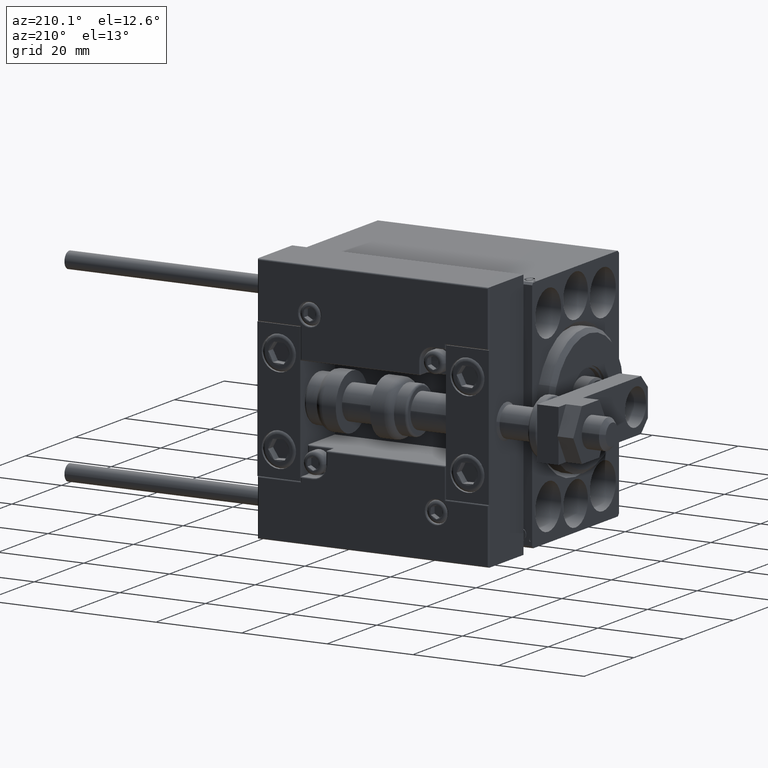
[diagram: clean part render]
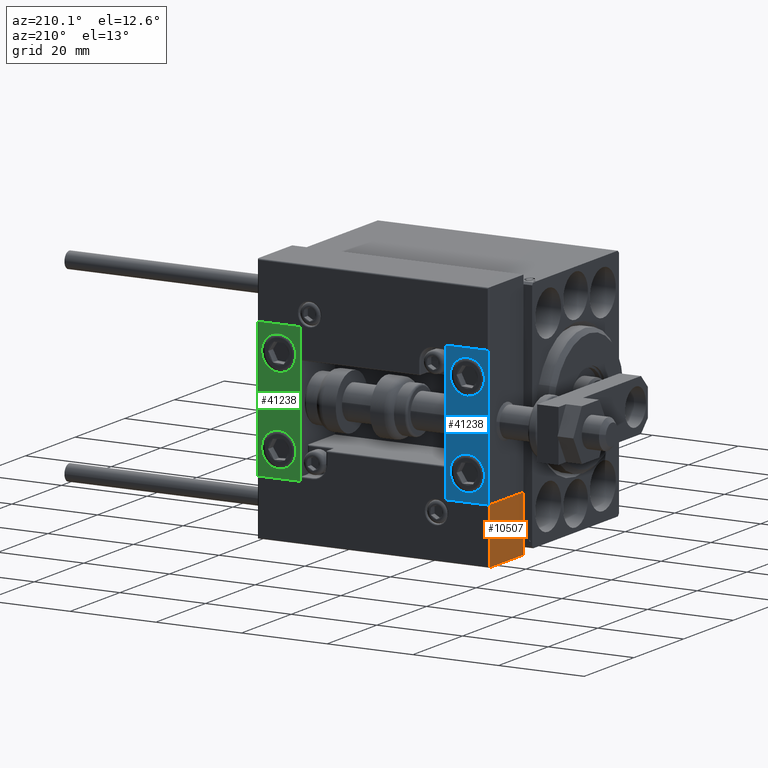
[diagram: same view with three faces highlighted in distinct colors, each labeled with its STEP entity id]
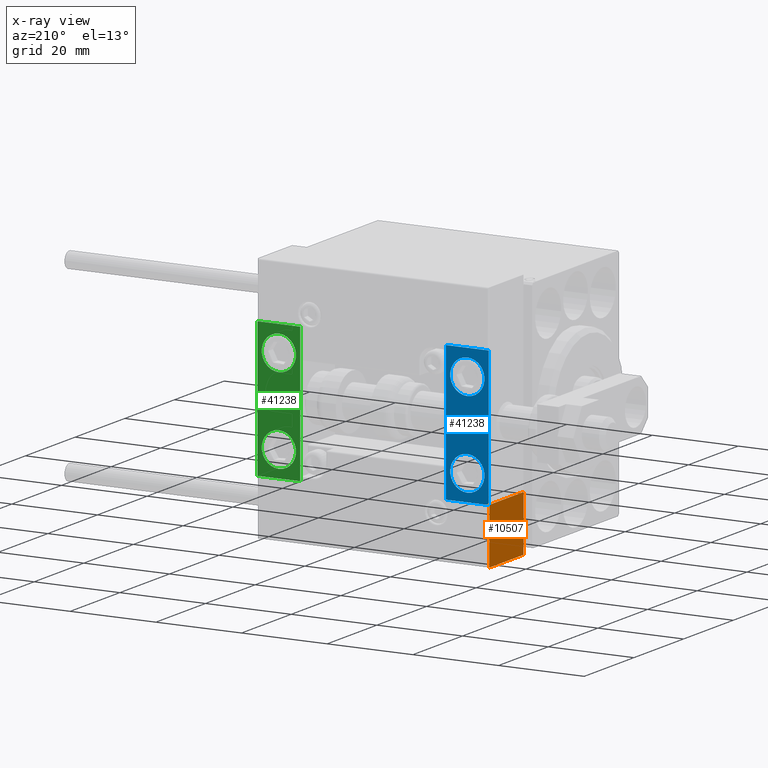
[diagram: x-ray of the same camera — body ghosted, the three highlighted faces saturated]
A machine part, auxiliary view with three faces highlighted in distinct colors.
The next image is the same camera in x-ray (body ghosted, the three faces saturated) — at least one of them is partly hidden behind the body in this view.
Their STEP definitions:

[orange] entity #10507 — the highlighted planar face has unit normal (1, 0, -0).
#366 = VERTEX_POINT ( 'NONE', #42802 ) ;
#934 = DIRECTION ( 'NONE',  ( -0.000000000000000000, -0.000000000000000000, -1.000000000000000000 ) ) ;
#2728 = CARTESIAN_POINT ( 'NONE',  ( -26.99999999999994671, 7.000000000000005329, 13.70000000000000107 ) ) ;
#5105 = EDGE_CURVE ( 'NONE', #27529, #40613, #48378, .T. ) ;
#5460 = CARTESIAN_POINT ( 'NONE',  ( -26.99999999999993605, 20.00000000000002132, 13.70000000000000107 ) ) ;
#10288 = LINE ( 'NONE', #49556, #30605 ) ;
#10507 = ADVANCED_FACE ( 'NONE', ( #18306 ), #41386, .F. ) ;
#11102 = VECTOR ( 'NONE', #934, 1000.000000000000000 ) ;
#11470 = DIRECTION ( 'NONE',  ( 1.000000000000000000, -8.006416042969869188E-16, 0.000000000000000000 ) ) ;
#13122 = LINE ( 'NONE', #36442, #11102 ) ;
#13878 = AXIS2_PLACEMENT_3D ( 'NONE', #45436, #11470, #41867 ) ;
#15102 = ORIENTED_EDGE ( 'NONE', *, *, #33647, .T. ) ;
#15648 = DIRECTION ( 'NONE',  ( -0.000000000000000000, -0.000000000000000000, -1.000000000000000000 ) ) ;
#16916 = VECTOR ( 'NONE', #15648, 1000.000000000000000 ) ;
#18306 = FACE_OUTER_BOUND ( 'NONE', #45533, .T. ) ;
#19131 = VECTOR ( 'NONE', #36410, 1000.000000000000000 ) ;
#19163 = ORIENTED_EDGE ( 'NONE', *, *, #5105, .F. ) ;
#27529 = VERTEX_POINT ( 'NONE', #2728 ) ;
#28375 = EDGE_CURVE ( 'NONE', #366, #45177, #13122, .T. ) ;
#30605 = VECTOR ( 'NONE', #41213, 1000.000000000000000 ) ;
#31663 = CARTESIAN_POINT ( 'NONE',  ( -26.99999999999994671, 7.000000000000005329, 0.000000000000000000 ) ) ;
#32424 = ORIENTED_EDGE ( 'NONE', *, *, #28375, .T. ) ;
#33647 = EDGE_CURVE ( 'NONE', #45177, #40613, #10288, .T. ) ;
#36410 = DIRECTION ( 'NONE',  ( 8.006416042969869188E-16, 1.000000000000000000, -0.000000000000000000 ) ) ;
#36442 = CARTESIAN_POINT ( 'NONE',  ( -26.99999999999993605, 20.00000000000002132, 14.00000000000000000 ) ) ;
#37718 = CARTESIAN_POINT ( 'NONE',  ( -26.99999999999994671, 7.000000000000005329, 14.00000000000000000 ) ) ;
#39914 = CARTESIAN_POINT ( 'NONE',  ( -26.99999999999993605, 20.00000000000002132, 0.000000000000000000 ) ) ;
#40428 = ORIENTED_EDGE ( 'NONE', *, *, #42521, .T. ) ;
#40613 = VERTEX_POINT ( 'NONE', #31663 ) ;
#41213 = DIRECTION ( 'NONE',  ( -8.006416042969869188E-16, -1.000000000000000000, 0.000000000000000000 ) ) ;
#41386 = PLANE ( 'NONE',  #13878 ) ;
#41867 = DIRECTION ( 'NONE',  ( 8.006416042969869188E-16, 1.000000000000000000, 0.000000000000000000 ) ) ;
#42521 = EDGE_CURVE ( 'NONE', #27529, #366, #44007, .T. ) ;
#42802 = CARTESIAN_POINT ( 'NONE',  ( -26.99999999999993605, 20.00000000000002132, 13.70000000000000107 ) ) ;
#44007 = LINE ( 'NONE', #5460, #19131 ) ;
#45177 = VERTEX_POINT ( 'NONE', #39914 ) ;
#45436 = CARTESIAN_POINT ( 'NONE',  ( -26.99999999999993605, 20.00000000000002132, 14.00000000000000000 ) ) ;
#45533 = EDGE_LOOP ( 'NONE', ( #19163, #40428, #32424, #15102 ) ) ;
#48378 = LINE ( 'NONE', #37718, #16916 ) ;
#49556 = CARTESIAN_POINT ( 'NONE',  ( -26.99999999999993605, 20.00000000000002132, 0.000000000000000000 ) ) ;

[blue] entity #41238 — the highlighted planar face has unit normal (-0, 1, -0).
#300 = PLANE ( 'NONE',  #33302 ) ;
#659 = CARTESIAN_POINT ( 'NONE',  ( 5.000000000000000888, 6.999999999999999112, -10.00000000000000178 ) ) ;
#755 = AXIS2_PLACEMENT_3D ( 'NONE', #33054, #28997, #29738 ) ;
#1182 = VERTEX_POINT ( 'NONE', #22713 ) ;
#1940 = ORIENTED_EDGE ( 'NONE', *, *, #10271, .F. ) ;
#4998 = DIRECTION ( 'NONE',  ( 0.000000000000000000, 0.000000000000000000, 1.000000000000000000 ) ) ;
#6045 = EDGE_CURVE ( 'NONE', #38244, #47646, #14527, .T. ) ;
#9075 = DIRECTION ( 'NONE',  ( -1.000000000000000000, -0.000000000000000000, -0.000000000000000000 ) ) ;
#9315 = LINE ( 'NONE', #17402, #12842 ) ;
#10271 = EDGE_CURVE ( 'NONE', #13245, #30273, #26470, .T. ) ;
#10306 = CIRCLE ( 'NONE', #21628, 4.000000000000000888 ) ;
#10469 = CARTESIAN_POINT ( 'NONE',  ( 10.00000000000000000, 7.000000000000000000, 15.99999999999999289 ) ) ;
#11631 = ORIENTED_EDGE ( 'NONE', *, *, #37419, .T. ) ;
#12842 = VECTOR ( 'NONE', #9075, 1000.000000000000000 ) ;
#12864 = DIRECTION ( 'NONE',  ( 1.848892746611746419E-32, -1.000000000000000000, 6.616381192988677562E-17 ) ) ;
#13245 = VERTEX_POINT ( 'NONE', #30958 ) ;
#13466 = VECTOR ( 'NONE', #36079, 1000.000000000000000 ) ;
#14121 = EDGE_CURVE ( 'NONE', #32719, #1182, #42172, .T. ) ;
#14467 = CARTESIAN_POINT ( 'NONE',  ( 5.000000000000000888, 6.999999999999999112, -10.00000000000000178 ) ) ;
#14527 = CIRCLE ( 'NONE', #19359, 4.000000000000000000 ) ;
#15105 = ORIENTED_EDGE ( 'NONE', *, *, #37729, .F. ) ;
#16164 = CIRCLE ( 'NONE', #755, 4.000000000000000000 ) ;
#16451 = CARTESIAN_POINT ( 'NONE',  ( 0.000000000000000000, 7.000000000000000000, -16.00000000000000711 ) ) ;
#17402 = CARTESIAN_POINT ( 'NONE',  ( 10.00000000000000000, 7.000000000000000000, 15.99999999999999289 ) ) ;
#19042 = CARTESIAN_POINT ( 'NONE',  ( 5.000000000000001776, 6.999999999999999112, -14.00000000000000178 ) ) ;
#19359 = AXIS2_PLACEMENT_3D ( 'NONE', #36189, #12864, #39984 ) ;
#21628 = AXIS2_PLACEMENT_3D ( 'NONE', #659, #35696, #4998 ) ;
#22713 = CARTESIAN_POINT ( 'NONE',  ( 10.00000000000000000, 7.000000000000000000, -16.00000000000000711 ) ) ;
#23899 = DIRECTION ( 'NONE',  ( -0.000000000000000000, 1.000000000000000000, 0.000000000000000000 ) ) ;
#24361 = CARTESIAN_POINT ( 'NONE',  ( 5.000000000000000888, 6.999999999999999112, -6.000000000000000888 ) ) ;
#24509 = VECTOR ( 'NONE', #45716, 1000.000000000000000 ) ;
#26206 = VERTEX_POINT ( 'NONE', #24361 ) ;
#26360 = DIRECTION ( 'NONE',  ( 0.000000000000000000, 0.000000000000000000, 1.000000000000000000 ) ) ;
#26390 = ORIENTED_EDGE ( 'NONE', *, *, #41296, .T. ) ;
#26470 = LINE ( 'NONE', #26726, #47860 ) ;
#26705 = LINE ( 'NONE', #42164, #13466 ) ;
#26726 = CARTESIAN_POINT ( 'NONE',  ( 0.000000000000000000, 7.000000000000000000, 15.99999999999999289 ) ) ;
#27785 = EDGE_CURVE ( 'NONE', #42228, #26206, #10306, .T. ) ;
#28997 = DIRECTION ( 'NONE',  ( 1.848892746611746419E-32, -1.000000000000000000, 6.616381192988677562E-17 ) ) ;
#29271 = ORIENTED_EDGE ( 'NONE', *, *, #34700, .F. ) ;
#29738 = DIRECTION ( 'NONE',  ( 0.000000000000000000, 0.000000000000000000, 1.000000000000000000 ) ) ;
#30273 = VERTEX_POINT ( 'NONE', #16451 ) ;
#30776 = FACE_OUTER_BOUND ( 'NONE', #46827, .T. ) ;
#30958 = CARTESIAN_POINT ( 'NONE',  ( 0.000000000000000000, 7.000000000000000000, 15.99999999999999289 ) ) ;
#31559 = CIRCLE ( 'NONE', #40445, 4.000000000000000888 ) ;
#32719 = VERTEX_POINT ( 'NONE', #10469 ) ;
#33054 = CARTESIAN_POINT ( 'NONE',  ( 5.000000000000000888, 7.000000000000000888, 10.00000000000000178 ) ) ;
#33302 = AXIS2_PLACEMENT_3D ( 'NONE', #46217, #23899, #38365 ) ;
#34700 = EDGE_CURVE ( 'NONE', #32719, #13245, #9315, .T. ) ;
#34768 = EDGE_LOOP ( 'NONE', ( #15105, #49753 ) ) ;
#35072 = FACE_BOUND ( 'NONE', #34768, .T. ) ;
#35696 = DIRECTION ( 'NONE',  ( 0.000000000000000000, 1.000000000000000000, -6.065466699219605527E-17 ) ) ;
#36079 = DIRECTION ( 'NONE',  ( -1.000000000000000000, -0.000000000000000000, -0.000000000000000000 ) ) ;
#36189 = CARTESIAN_POINT ( 'NONE',  ( 5.000000000000000888, 7.000000000000000888, 10.00000000000000178 ) ) ;
#36256 = ORIENTED_EDGE ( 'NONE', *, *, #6045, .T. ) ;
#37419 = EDGE_CURVE ( 'NONE', #47646, #38244, #16164, .T. ) ;
#37729 = EDGE_CURVE ( 'NONE', #26206, #42228, #31559, .T. ) ;
#38244 = VERTEX_POINT ( 'NONE', #42950 ) ;
#38365 = DIRECTION ( 'NONE',  ( 0.000000000000000000, -0.000000000000000000, 1.000000000000000000 ) ) ;
#38373 = CARTESIAN_POINT ( 'NONE',  ( 10.00000000000000000, 7.000000000000000000, 15.99999999999999289 ) ) ;
#39120 = FACE_BOUND ( 'NONE', #42522, .T. ) ;
#39984 = DIRECTION ( 'NONE',  ( 0.000000000000000000, 0.000000000000000000, 1.000000000000000000 ) ) ;
#40445 = AXIS2_PLACEMENT_3D ( 'NONE', #14467, #41578, #26360 ) ;
#41238 = ADVANCED_FACE ( 'NONE', ( #30776, #35072, #39120 ), #300, .T. ) ;
#41296 = EDGE_CURVE ( 'NONE', #1182, #30273, #26705, .T. ) ;
#41578 = DIRECTION ( 'NONE',  ( 0.000000000000000000, 1.000000000000000000, -6.065466699219605527E-17 ) ) ;
#42164 = CARTESIAN_POINT ( 'NONE',  ( 10.00000000000000000, 7.000000000000000000, -16.00000000000000711 ) ) ;
#42172 = LINE ( 'NONE', #38373, #24509 ) ;
#42228 = VERTEX_POINT ( 'NONE', #19042 ) ;
#42522 = EDGE_LOOP ( 'NONE', ( #36256, #11631 ) ) ;
#42950 = CARTESIAN_POINT ( 'NONE',  ( 5.000000000000000888, 7.000000000000000888, 14.00000000000000178 ) ) ;
#45716 = DIRECTION ( 'NONE',  ( 0.000000000000000000, 0.000000000000000000, -1.000000000000000000 ) ) ;
#46217 = CARTESIAN_POINT ( 'NONE',  ( 10.00000000000000000, 7.000000000000000000, 15.99999999999999289 ) ) ;
#46368 = CARTESIAN_POINT ( 'NONE',  ( 5.000000000000001776, 7.000000000000000888, 6.000000000000000888 ) ) ;
#46712 = ORIENTED_EDGE ( 'NONE', *, *, #14121, .T. ) ;
#46827 = EDGE_LOOP ( 'NONE', ( #1940, #29271, #46712, #26390 ) ) ;
#47646 = VERTEX_POINT ( 'NONE', #46368 ) ;
#47860 = VECTOR ( 'NONE', #49292, 1000.000000000000000 ) ;
#49292 = DIRECTION ( 'NONE',  ( 0.000000000000000000, 0.000000000000000000, -1.000000000000000000 ) ) ;
#49753 = ORIENTED_EDGE ( 'NONE', *, *, #27785, .F. ) ;

[green] entity #41238 — the highlighted planar face has unit normal (0, 1, 0).
#300 = PLANE ( 'NONE',  #33302 ) ;
#659 = CARTESIAN_POINT ( 'NONE',  ( 5.000000000000000888, 6.999999999999999112, -10.00000000000000178 ) ) ;
#755 = AXIS2_PLACEMENT_3D ( 'NONE', #33054, #28997, #29738 ) ;
#1182 = VERTEX_POINT ( 'NONE', #22713 ) ;
#1940 = ORIENTED_EDGE ( 'NONE', *, *, #10271, .F. ) ;
#4998 = DIRECTION ( 'NONE',  ( 0.000000000000000000, 0.000000000000000000, 1.000000000000000000 ) ) ;
#6045 = EDGE_CURVE ( 'NONE', #38244, #47646, #14527, .T. ) ;
#9075 = DIRECTION ( 'NONE',  ( -1.000000000000000000, -0.000000000000000000, -0.000000000000000000 ) ) ;
#9315 = LINE ( 'NONE', #17402, #12842 ) ;
#10271 = EDGE_CURVE ( 'NONE', #13245, #30273, #26470, .T. ) ;
#10306 = CIRCLE ( 'NONE', #21628, 4.000000000000000888 ) ;
#10469 = CARTESIAN_POINT ( 'NONE',  ( 10.00000000000000000, 7.000000000000000000, 15.99999999999999289 ) ) ;
#11631 = ORIENTED_EDGE ( 'NONE', *, *, #37419, .T. ) ;
#12842 = VECTOR ( 'NONE', #9075, 1000.000000000000000 ) ;
#12864 = DIRECTION ( 'NONE',  ( 1.848892746611746419E-32, -1.000000000000000000, 6.616381192988677562E-17 ) ) ;
#13245 = VERTEX_POINT ( 'NONE', #30958 ) ;
#13466 = VECTOR ( 'NONE', #36079, 1000.000000000000000 ) ;
#14121 = EDGE_CURVE ( 'NONE', #32719, #1182, #42172, .T. ) ;
#14467 = CARTESIAN_POINT ( 'NONE',  ( 5.000000000000000888, 6.999999999999999112, -10.00000000000000178 ) ) ;
#14527 = CIRCLE ( 'NONE', #19359, 4.000000000000000000 ) ;
#15105 = ORIENTED_EDGE ( 'NONE', *, *, #37729, .F. ) ;
#16164 = CIRCLE ( 'NONE', #755, 4.000000000000000000 ) ;
#16451 = CARTESIAN_POINT ( 'NONE',  ( 0.000000000000000000, 7.000000000000000000, -16.00000000000000711 ) ) ;
#17402 = CARTESIAN_POINT ( 'NONE',  ( 10.00000000000000000, 7.000000000000000000, 15.99999999999999289 ) ) ;
#19042 = CARTESIAN_POINT ( 'NONE',  ( 5.000000000000001776, 6.999999999999999112, -14.00000000000000178 ) ) ;
#19359 = AXIS2_PLACEMENT_3D ( 'NONE', #36189, #12864, #39984 ) ;
#21628 = AXIS2_PLACEMENT_3D ( 'NONE', #659, #35696, #4998 ) ;
#22713 = CARTESIAN_POINT ( 'NONE',  ( 10.00000000000000000, 7.000000000000000000, -16.00000000000000711 ) ) ;
#23899 = DIRECTION ( 'NONE',  ( -0.000000000000000000, 1.000000000000000000, 0.000000000000000000 ) ) ;
#24361 = CARTESIAN_POINT ( 'NONE',  ( 5.000000000000000888, 6.999999999999999112, -6.000000000000000888 ) ) ;
#24509 = VECTOR ( 'NONE', #45716, 1000.000000000000000 ) ;
#26206 = VERTEX_POINT ( 'NONE', #24361 ) ;
#26360 = DIRECTION ( 'NONE',  ( 0.000000000000000000, 0.000000000000000000, 1.000000000000000000 ) ) ;
#26390 = ORIENTED_EDGE ( 'NONE', *, *, #41296, .T. ) ;
#26470 = LINE ( 'NONE', #26726, #47860 ) ;
#26705 = LINE ( 'NONE', #42164, #13466 ) ;
#26726 = CARTESIAN_POINT ( 'NONE',  ( 0.000000000000000000, 7.000000000000000000, 15.99999999999999289 ) ) ;
#27785 = EDGE_CURVE ( 'NONE', #42228, #26206, #10306, .T. ) ;
#28997 = DIRECTION ( 'NONE',  ( 1.848892746611746419E-32, -1.000000000000000000, 6.616381192988677562E-17 ) ) ;
#29271 = ORIENTED_EDGE ( 'NONE', *, *, #34700, .F. ) ;
#29738 = DIRECTION ( 'NONE',  ( 0.000000000000000000, 0.000000000000000000, 1.000000000000000000 ) ) ;
#30273 = VERTEX_POINT ( 'NONE', #16451 ) ;
#30776 = FACE_OUTER_BOUND ( 'NONE', #46827, .T. ) ;
#30958 = CARTESIAN_POINT ( 'NONE',  ( 0.000000000000000000, 7.000000000000000000, 15.99999999999999289 ) ) ;
#31559 = CIRCLE ( 'NONE', #40445, 4.000000000000000888 ) ;
#32719 = VERTEX_POINT ( 'NONE', #10469 ) ;
#33054 = CARTESIAN_POINT ( 'NONE',  ( 5.000000000000000888, 7.000000000000000888, 10.00000000000000178 ) ) ;
#33302 = AXIS2_PLACEMENT_3D ( 'NONE', #46217, #23899, #38365 ) ;
#34700 = EDGE_CURVE ( 'NONE', #32719, #13245, #9315, .T. ) ;
#34768 = EDGE_LOOP ( 'NONE', ( #15105, #49753 ) ) ;
#35072 = FACE_BOUND ( 'NONE', #34768, .T. ) ;
#35696 = DIRECTION ( 'NONE',  ( 0.000000000000000000, 1.000000000000000000, -6.065466699219605527E-17 ) ) ;
#36079 = DIRECTION ( 'NONE',  ( -1.000000000000000000, -0.000000000000000000, -0.000000000000000000 ) ) ;
#36189 = CARTESIAN_POINT ( 'NONE',  ( 5.000000000000000888, 7.000000000000000888, 10.00000000000000178 ) ) ;
#36256 = ORIENTED_EDGE ( 'NONE', *, *, #6045, .T. ) ;
#37419 = EDGE_CURVE ( 'NONE', #47646, #38244, #16164, .T. ) ;
#37729 = EDGE_CURVE ( 'NONE', #26206, #42228, #31559, .T. ) ;
#38244 = VERTEX_POINT ( 'NONE', #42950 ) ;
#38365 = DIRECTION ( 'NONE',  ( 0.000000000000000000, -0.000000000000000000, 1.000000000000000000 ) ) ;
#38373 = CARTESIAN_POINT ( 'NONE',  ( 10.00000000000000000, 7.000000000000000000, 15.99999999999999289 ) ) ;
#39120 = FACE_BOUND ( 'NONE', #42522, .T. ) ;
#39984 = DIRECTION ( 'NONE',  ( 0.000000000000000000, 0.000000000000000000, 1.000000000000000000 ) ) ;
#40445 = AXIS2_PLACEMENT_3D ( 'NONE', #14467, #41578, #26360 ) ;
#41238 = ADVANCED_FACE ( 'NONE', ( #30776, #35072, #39120 ), #300, .T. ) ;
#41296 = EDGE_CURVE ( 'NONE', #1182, #30273, #26705, .T. ) ;
#41578 = DIRECTION ( 'NONE',  ( 0.000000000000000000, 1.000000000000000000, -6.065466699219605527E-17 ) ) ;
#42164 = CARTESIAN_POINT ( 'NONE',  ( 10.00000000000000000, 7.000000000000000000, -16.00000000000000711 ) ) ;
#42172 = LINE ( 'NONE', #38373, #24509 ) ;
#42228 = VERTEX_POINT ( 'NONE', #19042 ) ;
#42522 = EDGE_LOOP ( 'NONE', ( #36256, #11631 ) ) ;
#42950 = CARTESIAN_POINT ( 'NONE',  ( 5.000000000000000888, 7.000000000000000888, 14.00000000000000178 ) ) ;
#45716 = DIRECTION ( 'NONE',  ( 0.000000000000000000, 0.000000000000000000, -1.000000000000000000 ) ) ;
#46217 = CARTESIAN_POINT ( 'NONE',  ( 10.00000000000000000, 7.000000000000000000, 15.99999999999999289 ) ) ;
#46368 = CARTESIAN_POINT ( 'NONE',  ( 5.000000000000001776, 7.000000000000000888, 6.000000000000000888 ) ) ;
#46712 = ORIENTED_EDGE ( 'NONE', *, *, #14121, .T. ) ;
#46827 = EDGE_LOOP ( 'NONE', ( #1940, #29271, #46712, #26390 ) ) ;
#47646 = VERTEX_POINT ( 'NONE', #46368 ) ;
#47860 = VECTOR ( 'NONE', #49292, 1000.000000000000000 ) ;
#49292 = DIRECTION ( 'NONE',  ( 0.000000000000000000, 0.000000000000000000, -1.000000000000000000 ) ) ;
#49753 = ORIENTED_EDGE ( 'NONE', *, *, #27785, .F. ) ;